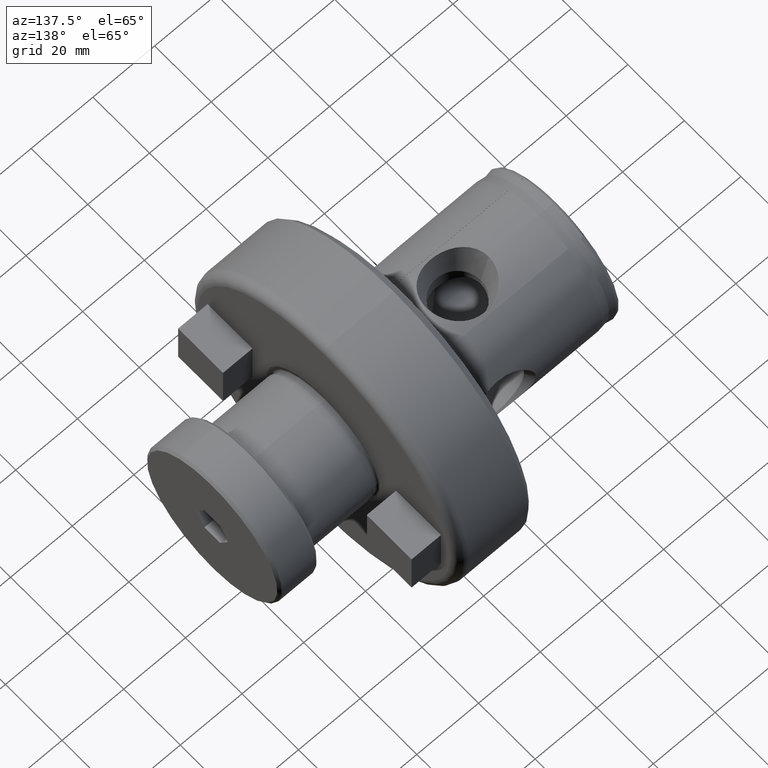
[diagram: clean part render]
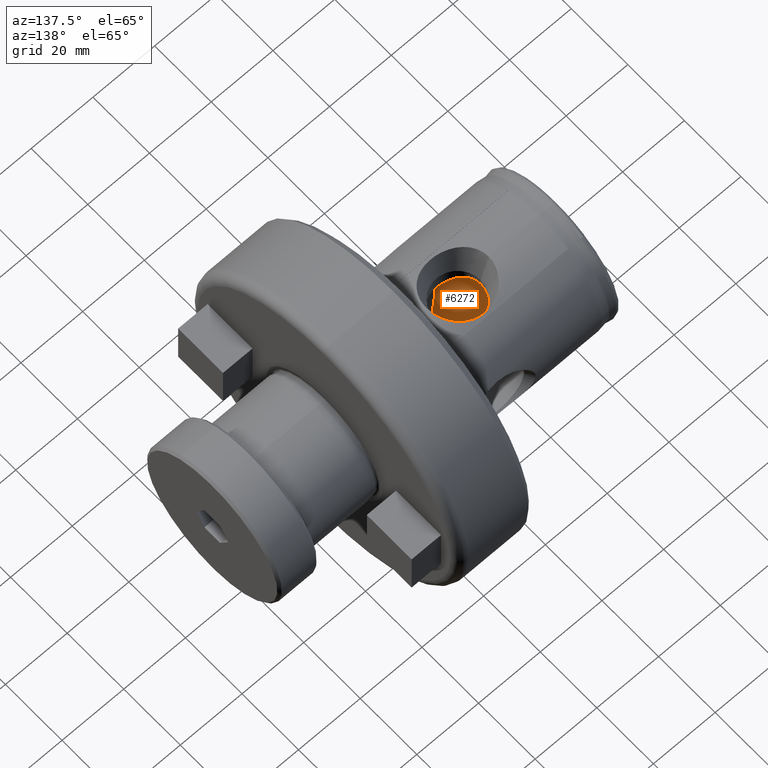
[diagram: same view with one face highlighted and labeled with its STEP entity id]
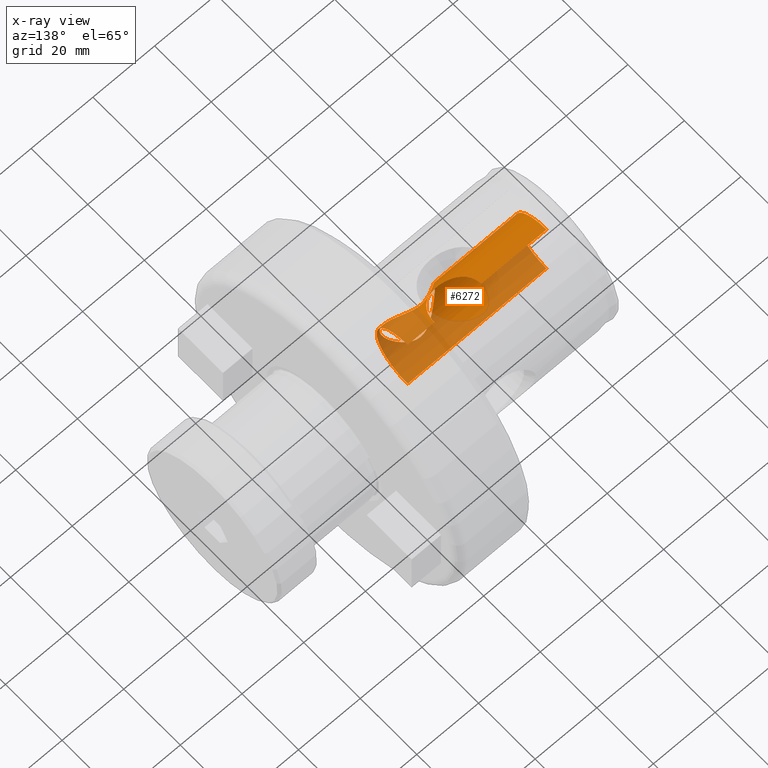
[diagram: x-ray of the same camera — body ghosted, the highlighted face saturated]
A machine part, auxiliary view. The second image highlights one B-rep face of the part: STEP entity #6272.
The next image is the same camera in x-ray: the body ghosted, the highlighted face saturated — about 54% of this face is hidden behind the body in this view.
In plain terms, the highlighted cylindrical surface (partial cylindrical patch) has radius 11 mm, axis along (-1, -0, -0).
Its self-contained STEP definition (entity closure, byte-faithful):
#192 = DIRECTION ( 'NONE',  ( 0.0000000000000000000, 0.0000000000000000000, 1.000000000000000000 ) ) ;
#193 = DIRECTION ( 'NONE',  ( -1.000000000000000000, -0.0000000000000000000, -0.0000000000000000000 ) ) ;
#194 = CARTESIAN_POINT ( 'NONE',  ( 0.0000000000000000000, 0.0000000000000000000, 0.0000000000000000000 ) ) ;
#670 = LINE ( 'NONE', #5202, #672 ) ;
#672 = VECTOR ( 'NONE', #5215, 1000.000000000000000 ) ;
#673 = VECTOR ( 'NONE', #5220, 1000.000000000000000 ) ;
#674 = LINE ( 'NONE', #5214, #673 ) ;
#675 = CIRCLE ( 'NONE', #3207, 11.00000000000000000 ) ;
#676 = LINE ( 'NONE', #5221, #677 ) ;
#677 = VECTOR ( 'NONE', #5222, 1000.000000000000000 ) ;
#940 = FACE_BOUND ( 'NONE', #6953, .T. ) ;
#944 = CYLINDRICAL_SURFACE ( 'NONE', #7207, 11.00000000000000000 ) ;
#950 = FACE_OUTER_BOUND ( 'NONE', #6955, .T. ) ;
#2258 = CIRCLE ( 'NONE', #3190, 11.00000000000000000 ) ;
#2929 = EDGE_CURVE ( 'NONE', #3975, #3951, #2258, .T. ) ;
#2953 = EDGE_CURVE ( 'NONE', #9272, #9273, #7035, .T. ) ;
#2954 = EDGE_CURVE ( 'NONE', #9273, #9272, #7036, .T. ) ;
#2971 = EDGE_CURVE ( 'NONE', #3951, #9287, #670, .T. ) ;
#2972 = EDGE_CURVE ( 'NONE', #3875, #3877, #675, .T. ) ;
#2973 = EDGE_CURVE ( 'NONE', #3975, #3875, #674, .T. ) ;
#2974 = EDGE_CURVE ( 'NONE', #9288, #3877, #676, .T. ) ;
#3190 = AXIS2_PLACEMENT_3D ( 'NONE', #4984, #4985, #4986 ) ;
#3207 = AXIS2_PLACEMENT_3D ( 'NONE', #5216, #5217, #5218 ) ;
#3875 = VERTEX_POINT ( 'NONE', #5791 ) ;
#3877 = VERTEX_POINT ( 'NONE', #5793 ) ;
#3951 = VERTEX_POINT ( 'NONE', #5816 ) ;
#3975 = VERTEX_POINT ( 'NONE', #5820 ) ;
#4984 = CARTESIAN_POINT ( 'NONE',  ( 48.00000000000000000, 0.0000000000000000000, 0.0000000000000000000 ) ) ;
#4985 = DIRECTION ( 'NONE',  ( -1.000000000000000000, -0.0000000000000000000, -0.0000000000000000000 ) ) ;
#4986 = DIRECTION ( 'NONE',  ( 0.0000000000000000000, 0.0000000000000000000, 1.000000000000000000 ) ) ;
#5043 = CARTESIAN_POINT ( 'NONE',  ( 37.99999999999999300, -6.324555320336753700, -9.000000000000003600 ) ) ;
#5045 = CARTESIAN_POINT ( 'NONE',  ( 37.99999999999982900, -6.324555320337297300, 9.000000000000078200 ) ) ;
#5046 = CARTESIAN_POINT ( 'NONE',  ( 38.31295146527097700, -6.324555320336757300, -9.000000000000005300 ) ) ;
#5047 = CARTESIAN_POINT ( 'NONE',  ( 38.62378268100995600, -6.347894227592907300, -8.983724380777522000 ) ) ;
#5048 = CARTESIAN_POINT ( 'NONE',  ( 39.24143426781726900, -6.437997773600920400, -8.919374952405208400 ) ) ;
#5049 = CARTESIAN_POINT ( 'NONE',  ( 39.54976340284996900, -6.505455086465420100, -8.870726595185534100 ) ) ;
#5050 = CARTESIAN_POINT ( 'NONE',  ( 40.43821651174812400, -6.754377607669276500, -8.684545351785478900 ) ) ;
#5051 = CARTESIAN_POINT ( 'NONE',  ( 40.99412497202110500, -6.982137574739820900, -8.506897211298191800 ) ) ;
#5052 = CARTESIAN_POINT ( 'NONE',  ( 42.05461547428918600, -7.498357647435788000, -8.055568128153833400 ) ) ;
#5053 = CARTESIAN_POINT ( 'NONE',  ( 42.54394238459282500, -7.779283033584960100, -7.788385423207050600 ) ) ;
#5054 = CARTESIAN_POINT ( 'NONE',  ( 43.23402882798424700, -8.207467075943773300, -7.326768196248649700 ) ) ;
#5055 = CARTESIAN_POINT ( 'NONE',  ( 43.45653668630526300, -8.351529607590668600, -7.162630017601375500 ) ) ;
#5056 = CARTESIAN_POINT ( 'NONE',  ( 43.88759775224712500, -8.639332235174997300, -6.812727360299546400 ) ) ;
#5057 = CARTESIAN_POINT ( 'NONE',  ( 44.09687597052867900, -8.783602170141929100, -6.626238705432832900 ) ) ;
#5058 = CARTESIAN_POINT ( 'NONE',  ( 44.69902397215959400, -9.208474581211641300, -6.036457715081474400 ) ) ;
#5059 = CARTESIAN_POINT ( 'NONE',  ( 45.06202882861030900, -9.477738077880649900, -5.608197967950855100 ) ) ;
#5060 = CARTESIAN_POINT ( 'NONE',  ( 45.54983857994444200, -9.848293230677796800, -4.907236627955193800 ) ) ;
#5061 = CARTESIAN_POINT ( 'NONE',  ( 45.70289006612479500, -9.966266519665991200, -4.663753832353022800 ) ) ;
#5062 = CARTESIAN_POINT ( 'NONE',  ( 45.98876279001349600, -10.18883133069318700, -4.155091366563165200 ) ) ;
#5063 = CARTESIAN_POINT ( 'NONE',  ( 46.12226849291566600, -10.29397154860356000, -3.888328396208876800 ) ) ;
#5064 = CARTESIAN_POINT ( 'NONE',  ( 46.48426076031908800, -10.58116722006071900, -3.062465036862893200 ) ) ;
#5065 = CARTESIAN_POINT ( 'NONE',  ( 46.67201523968023500, -10.73303995099937100, -2.485920569551101100 ) ) ;
#5066 = CARTESIAN_POINT ( 'NONE',  ( 46.86611209507313400, -10.89066197485386800, -1.577329599810565400 ) ) ;
#5067 = CARTESIAN_POINT ( 'NONE',  ( 46.91612351217000300, -10.93146341324059600, -1.265123403570824100 ) ) ;
#5068 = CARTESIAN_POINT ( 'NONE',  ( 46.98243211327050500, -10.98561425411707000, -0.6432021774063077000 ) ) ;
#5069 = CARTESIAN_POINT ( 'NONE',  ( 46.99928483042610600, -10.99941486172795500, -0.3318139073565993800 ) ) ;
#5070 = CARTESIAN_POINT ( 'NONE',  ( 47.00067072176239000, -11.00054877189566600, 0.2918124169082695900 ) ) ;
#5071 = CARTESIAN_POINT ( 'NONE',  ( 46.98520516997831500, -10.98788290588001700, 0.6040504403491803200 ) ) ;
#5072 = CARTESIAN_POINT ( 'NONE',  ( 46.92117575948941500, -10.93558575195799800, 1.229394952563908700 ) ) ;
#5073 = CARTESIAN_POINT ( 'NONE',  ( 46.87253691795822900, -10.89589586246527000, 1.540691347388883000 ) ) ;
#5074 = CARTESIAN_POINT ( 'NONE',  ( 46.74585106358330200, -10.79298596828219400, 2.146096540715378300 ) ) ;
#5075 = CARTESIAN_POINT ( 'NONE',  ( 46.66760810845059400, -10.72960462351119100, 2.442414731716943800 ) ) ;
#5076 = CARTESIAN_POINT ( 'NONE',  ( 46.48259625703186500, -10.58071000996649900, 3.022975485109889800 ) ) ;
#5077 = CARTESIAN_POINT ( 'NONE',  ( 46.37513096970883500, -10.49464205608619900, 3.308720680275716800 ) ) ;
#5078 = CARTESIAN_POINT ( 'NONE',  ( 46.01577456462833000, -10.20937874570882500, 4.136322440102849100 ) ) ;
#5079 = CARTESIAN_POINT ( 'NONE',  ( 45.72938141114562400, -9.984873728867773600, 4.646559155060552700 ) ) ;
#5080 = CARTESIAN_POINT ( 'NONE',  ( 45.23616714022042400, -9.609927495919183800, 5.359230109251155800 ) ) ;
#5081 = CARTESIAN_POINT ( 'NONE',  ( 45.06061911621536400, -9.478236986029864800, 5.588225433440646500 ) ) ;
#5082 = CARTESIAN_POINT ( 'NONE',  ( 44.69436173205068000, -9.208643388611749400, 6.022136398295425700 ) ) ;
#5083 = CARTESIAN_POINT ( 'NONE',  ( 44.50299915674345600, -9.070227025113871000, 6.228095582515769600 ) ) ;
#5084 = CARTESIAN_POINT ( 'NONE',  ( 44.10386877238173000, -8.788471667187465600, 6.619740072472756000 ) ) ;
#5085 = CARTESIAN_POINT ( 'NONE',  ( 43.89610422887614000, -8.645121770151419600, 6.805420925311390000 ) ) ;
#5086 = CARTESIAN_POINT ( 'NONE',  ( 43.46337127312004600, -8.355986537263470700, 7.157469761059690700 ) ) ;
#5087 = CARTESIAN_POINT ( 'NONE',  ( 43.23739431678275500, -8.209575931333878500, 7.324464543071716300 ) ) ;
#5088 = CARTESIAN_POINT ( 'NONE',  ( 42.54069967077212100, -7.777229871337427300, 7.790658944439934800 ) ) ;
#5089 = CARTESIAN_POINT ( 'NONE',  ( 42.05129833255504200, -7.496988139732030400, 8.056647767958624600 ) ) ;
#5090 = CARTESIAN_POINT ( 'NONE',  ( 41.26756004608847700, -7.115117841734852200, 8.390691223271490500 ) ) ;
#5091 = CARTESIAN_POINT ( 'NONE',  ( 40.99792248244986600, -6.994374932525727400, 8.491102994853577000 ) ) ;
#5092 = CARTESIAN_POINT ( 'NONE',  ( 40.43758875102924600, -6.773151438223583100, 8.668594485892473500 ) ) ;
#5093 = CARTESIAN_POINT ( 'NONE',  ( 40.14417004229314000, -6.672033518611987000, 8.746130474273464000 ) ) ;
#5094 = CARTESIAN_POINT ( 'NONE',  ( 39.54960080873358000, -6.505369226234754400, 8.870794822159666600 ) ) ;
#5095 = CARTESIAN_POINT ( 'NONE',  ( 39.24753997425402500, -6.439239462942335700, 8.918479843861579300 ) ) ;
#5096 = CARTESIAN_POINT ( 'NONE',  ( 38.63241241971881800, -6.348810466722627900, 8.983078160859575300 ) ) ;
#5097 = CARTESIAN_POINT ( 'NONE',  ( 38.31746747245787100, -6.324555320336754600, 9.000000000000003600 ) ) ;
#5098 = CARTESIAN_POINT ( 'NONE',  ( 37.99999999999982900, -6.324555320337297300, 9.000000000000078200 ) ) ;
#5099 = CARTESIAN_POINT ( 'NONE',  ( 37.36493546795291100, -6.324555320336754600, 9.000000000000005300 ) ) ;
#5100 = CARTESIAN_POINT ( 'NONE',  ( 36.75141791130541000, -6.421128397702461600, 8.933792976719393800 ) ) ;
#5101 = CARTESIAN_POINT ( 'NONE',  ( 35.85644050030533200, -6.671793649059012000, 8.746316722886337700 ) ) ;
#5102 = CARTESIAN_POINT ( 'NONE',  ( 35.56727145118488700, -6.771442408310744700, 8.669914765027600700 ) ) ;
#5103 = CARTESIAN_POINT ( 'NONE',  ( 35.00934583139060400, -6.991300054572819900, 8.493619833077232800 ) ) ;
#5104 = CARTESIAN_POINT ( 'NONE',  ( 34.73945332249547100, -7.111861497588426700, 8.393462625440385200 ) ) ;
#5105 = CARTESIAN_POINT ( 'NONE',  ( 33.95193514472841700, -7.495096154904529400, 8.058454495181845100 ) ) ;
#5106 = CARTESIAN_POINT ( 'NONE',  ( 33.45367242090777200, -7.780654904042037900, 7.787064382157709900 ) ) ;
#5107 = CARTESIAN_POINT ( 'NONE',  ( 32.53215203577520500, -8.352655723735775700, 7.170084015435709700 ) ) ;
#5108 = CARTESIAN_POINT ( 'NONE',  ( 32.10457456989636400, -8.641548153922768100, 6.823073606755328600 ) ) ;
#5109 = CARTESIAN_POINT ( 'NONE',  ( 31.30809089608875000, -9.203366826855461400, 6.043899981808402300 ) ) ;
#5110 = CARTESIAN_POINT ( 'NONE',  ( 30.93695623064566600, -9.478467829318058000, 5.607305554645750900 ) ) ;
#5111 = CARTESIAN_POINT ( 'NONE',  ( 30.28274930797435300, -9.975506169973165500, 4.666101652065225200 ) ) ;
#5112 = CARTESIAN_POINT ( 'NONE',  ( 29.99637436494793600, -10.19983137480277300, 4.159577662267057700 ) ) ;
#5113 = CARTESIAN_POINT ( 'NONE',  ( 29.63533214012701200, -10.48629117458024100, 3.335020090288996800 ) ) ;
#5114 = CARTESIAN_POINT ( 'NONE',  ( 29.52720750436195700, -10.57284959928780000, 3.050255294031573700 ) ) ;
#5115 = CARTESIAN_POINT ( 'NONE',  ( 29.34082425582788300, -10.72279163946958600, 2.472032658451161200 ) ) ;
#5116 = CARTESIAN_POINT ( 'NONE',  ( 29.26182400479599700, -10.78676577896199600, 2.176972083629176600 ) ) ;
#5117 = CARTESIAN_POINT ( 'NONE',  ( 29.13340449705962600, -10.89105651715152400, 1.574297101343248300 ) ) ;
#5118 = CARTESIAN_POINT ( 'NONE',  ( 29.08385259096189300, -10.93148274493101200, 1.265464211947524100 ) ) ;
#5119 = CARTESIAN_POINT ( 'NONE',  ( 29.01722801004076400, -10.98589199867828900, 0.6394463760321479300 ) ) ;
#5120 = CARTESIAN_POINT ( 'NONE',  ( 29.00054522381505600, -10.99955390799993400, 0.3270880132073262200 ) ) ;
#5121 = CARTESIAN_POINT ( 'NONE',  ( 28.99948100046182700, -11.00042463577868000, -0.2963622376991538200 ) ) ;
#5122 = CARTESIAN_POINT ( 'NONE',  ( 29.01510174577919100, -10.98763210947562300, -0.6074540486949785400 ) ) ;
#5123 = CARTESIAN_POINT ( 'NONE',  ( 29.07876096421264100, -10.93563755197361200, -1.228369295578585700 ) ) ;
#5124 = CARTESIAN_POINT ( 'NONE',  ( 29.12736447164398300, -10.89597579326361800, -1.540291302733667100 ) ) ;
#5125 = CARTESIAN_POINT ( 'NONE',  ( 29.31794934527165700, -10.74115974393061300, -2.450842812997112900 ) ) ;
#5126 = CARTESIAN_POINT ( 'NONE',  ( 29.50366094513340400, -10.59087095141755900, -3.028991403410703100 ) ) ;
#5127 = CARTESIAN_POINT ( 'NONE',  ( 29.98287972058271200, -10.21043523797946600, -4.133805593220777100 ) ) ;
#5128 = CARTESIAN_POINT ( 'NONE',  ( 30.27002699517530400, -9.985354041722065000, -4.645278640837753800 ) ) ;
#5129 = CARTESIAN_POINT ( 'NONE',  ( 30.92453213825540800, -9.487731981132133900, -5.591855760278635400 ) ) ;
#5130 = CARTESIAN_POINT ( 'NONE',  ( 31.29459835462680000, -9.213182384378720600, -6.029082159531553100 ) ) ;
#5131 = CARTESIAN_POINT ( 'NONE',  ( 32.09188219795208100, -8.650212389584899200, -6.812223348458252800 ) ) ;
#5132 = CARTESIAN_POINT ( 'NONE',  ( 32.52146801102601600, -8.359513932091447300, -7.162354338445943800 ) ) ;
#5133 = CARTESIAN_POINT ( 'NONE',  ( 33.45165341999433700, -7.781684717236289300, -7.786281256917032300 ) ) ;
#5134 = CARTESIAN_POINT ( 'NONE',  ( 33.94449689956797300, -7.499170577374030700, -8.054674320068283300 ) ) ;
#5135 = CARTESIAN_POINT ( 'NONE',  ( 34.73091701534254100, -7.115793493933870700, -8.390132143739949200 ) ) ;
#5136 = CARTESIAN_POINT ( 'NONE',  ( 35.00138358257240200, -6.994647420814206200, -8.490884733572787700 ) ) ;
#5137 = CARTESIAN_POINT ( 'NONE',  ( 35.56319123012077200, -6.772844978559367000, -8.668840002948803300 ) ) ;
#5138 = CARTESIAN_POINT ( 'NONE',  ( 35.85479622440377800, -6.672417728769111100, -8.745833673684750000 ) ) ;
#5139 = CARTESIAN_POINT ( 'NONE',  ( 36.44688742820334000, -6.506259890984443600, -8.870137948528055800 ) ) ;
#5140 = CARTESIAN_POINT ( 'NONE',  ( 36.74918223585172000, -6.439773594340239900, -8.918097037106676300 ) ) ;
#5141 = CARTESIAN_POINT ( 'NONE',  ( 37.36866356563100300, -6.348600204817960200, -8.983229605715195000 ) ) ;
#5142 = CARTESIAN_POINT ( 'NONE',  ( 37.68698466285846400, -6.324555320336751900, -9.000000000000005300 ) ) ;
#5143 = CARTESIAN_POINT ( 'NONE',  ( 37.99999999999999300, -6.324555320336753700, -9.000000000000003600 ) ) ;
#5202 = CARTESIAN_POINT ( 'NONE',  ( 0.0000000000000000000, 0.0000000000000000000, 11.00000000000000000 ) ) ;
#5214 = CARTESIAN_POINT ( 'NONE',  ( 0.0000000000000000000, 1.347111479062088400E-015, -11.00000000000000000 ) ) ;
#5215 = DIRECTION ( 'NONE',  ( -1.000000000000000000, -0.0000000000000000000, -0.0000000000000000000 ) ) ;
#5216 = CARTESIAN_POINT ( 'NONE',  ( 3.000000000000000900, 0.0000000000000000000, 0.0000000000000000000 ) ) ;
#5217 = DIRECTION ( 'NONE',  ( -1.000000000000000000, -0.0000000000000000000, -0.0000000000000000000 ) ) ;
#5218 = DIRECTION ( 'NONE',  ( 0.0000000000000000000, 0.0000000000000000000, 1.000000000000000000 ) ) ;
#5220 = DIRECTION ( 'NONE',  ( -1.000000000000000000, -0.0000000000000000000, -0.0000000000000000000 ) ) ;
#5221 = CARTESIAN_POINT ( 'NONE',  ( 0.0000000000000000000, 0.0000000000000000000, 11.00000000000000000 ) ) ;
#5222 = DIRECTION ( 'NONE',  ( -1.000000000000000000, -0.0000000000000000000, -0.0000000000000000000 ) ) ;
#5791 = CARTESIAN_POINT ( 'NONE',  ( 3.000000000000000900, 1.347111479062088400E-015, -11.00000000000000000 ) ) ;
#5793 = CARTESIAN_POINT ( 'NONE',  ( 3.000000000000000900, 0.0000000000000000000, 11.00000000000000000 ) ) ;
#5816 = CARTESIAN_POINT ( 'NONE',  ( 48.00000000000000000, 0.0000000000000000000, 11.00000000000000000 ) ) ;
#5820 = CARTESIAN_POINT ( 'NONE',  ( 48.00000000000000000, 1.347111479062088400E-015, -11.00000000000000000 ) ) ;
#6272 = ADVANCED_FACE ( 'NONE', ( #940, #950 ), #944, .F. ) ;
#6442 = EDGE_CURVE ( 'NONE', #9287, #9288, #7372, .T. ) ;
#6643 = ORIENTED_EDGE ( 'NONE', *, *, #2954, .T. ) ;
#6644 = ORIENTED_EDGE ( 'NONE', *, *, #2953, .T. ) ;
#6645 = ORIENTED_EDGE ( 'NONE', *, *, #2929, .F. ) ;
#6646 = ORIENTED_EDGE ( 'NONE', *, *, #2973, .T. ) ;
#6647 = ORIENTED_EDGE ( 'NONE', *, *, #2972, .T. ) ;
#6648 = ORIENTED_EDGE ( 'NONE', *, *, #2974, .F. ) ;
#6649 = ORIENTED_EDGE ( 'NONE', *, *, #6442, .F. ) ;
#6650 = ORIENTED_EDGE ( 'NONE', *, *, #2971, .F. ) ;
#6953 = EDGE_LOOP ( 'NONE', ( #6643, #6644 ) ) ;
#6955 = EDGE_LOOP ( 'NONE', ( #6645, #6646, #6647, #6648, #6649, #6650 ) ) ;
#7035 = B_SPLINE_CURVE_WITH_KNOTS ( 'NONE', 3,
 ( #5043, #5046, #5047, #5048, #5049, #5050, #5051, #5052, #5053, #5054, #5055, #5056, #5057, #5058, #5059, #5060, #5061, #5062, #5063, #5064, #5065, #5066, #5067, #5068, #5069, #5070, #5071, #5072, #5073, #5074, #5075, #5076, #5077, #5078, #5079, #5080, #5081, #5082, #5083, #5084, #5085, #5086, #5087, #5088, #5089, #5090, #5091, #5092, #5093, #5094, #5095, #5096, #5097, #5098 ),
 .UNSPECIFIED., .F., .F.,
 ( 4, 2, 2, 2, 2, 2, 2, 2, 2, 2, 2, 2, 2, 2, 2, 2, 2, 2, 2, 2, 2, 2, 2, 2, 2, 2, 4 ),
 ( 0.02997932417630954200, 0.03091598688851945200, 0.03185264960072935900, 0.03372597502514915900, 0.03559930044956895900, 0.03653596316177885900, 0.03747262587398875900, 0.03934595129840856600, 0.04028261401061845900, 0.04121927672282835200, 0.04309260214724815200, 0.04402926485945805200, 0.04496592757166795200, 0.04590259028387784500, 0.04683925299608775200, 0.04777591570829764500, 0.04871257842050754500, 0.05058590384492733100, 0.05152256655713723100, 0.05245922926934712400, 0.05339589198155703100, 0.05433255469376692400, 0.05620588011818671000, 0.05714254283039660300, 0.05807920554260649600, 0.05901586825481638900, 0.05995253096702627500 ),
 .UNSPECIFIED. ) ;
#7036 = B_SPLINE_CURVE_WITH_KNOTS ( 'NONE', 3,
 ( #5045, #5099, #5100, #5101, #5102, #5103, #5104, #5105, #5106, #5107, #5108, #5109, #5110, #5111, #5112, #5113, #5114, #5115, #5116, #5117, #5118, #5119, #5120, #5121, #5122, #5123, #5124, #5125, #5126, #5127, #5128, #5129, #5130, #5131, #5132, #5133, #5134, #5135, #5136, #5137, #5138, #5139, #5140, #5141, #5142, #5143 ),
 .UNSPECIFIED., .F., .F.,
 ( 4, 2, 2, 2, 2, 2, 2, 2, 2, 2, 2, 2, 2, 2, 2, 2, 2, 2, 2, 2, 2, 2, 4 ),
 ( 2.259156830382659900E-016, 0.001873707761019562300, 0.002810561641529231300, 0.003747415522038900400, 0.005621123283058237000, 0.007494831044077574500, 0.009368538805096896300, 0.01124224656611622100, 0.01217910044662588400, 0.01311595432713554700, 0.01405280820764520800, 0.01498966208815487000, 0.01592651596866453300, 0.01686336984917419200, 0.01873707761019351500, 0.02061078537121284500, 0.02248449313223217100, 0.02435820089325150400, 0.02623190865427084100, 0.02716876253478051800, 0.02810561641529019100, 0.02904247029579986500, 0.02997932417630954200 ),
 .UNSPECIFIED. ) ;
#7207 = AXIS2_PLACEMENT_3D ( 'NONE', #194, #193, #192 ) ;
#7372 = B_SPLINE_CURVE_WITH_KNOTS ( 'NONE', 3,
 ( #8035, #8049, #8050, #8051, #8052, #8053, #8054, #8055, #8056, #8057, #8058, #8059, #8060, #8061, #8062, #8063, #8064, #8065, #8066, #8067, #8068, #8069, #8070, #8071, #8072, #8073, #8074, #8075, #8076, #8077, #8078, #8079, #8080, #8081, #8082, #8083, #8084, #8085, #8086, #8087, #8088, #8089 ),
 .UNSPECIFIED., .F., .F.,
 ( 4, 2, 2, 2, 2, 2, 2, 2, 2, 2, 2, 2, 2, 2, 2, 2, 2, 2, 2, 2, 4 ),
 ( 1.098554573353814300E-018, 0.001518570937570078300, 0.003037141875140155400, 0.004555712812710231500, 0.006074283750280309000, 0.007592854687850385600, 0.009111425625420464800, 0.009870711094205501800, 0.01062999656299054200, 0.01138928203177557900, 0.01214856750056061800, 0.01366713843813069400, 0.01518570937570077100, 0.01594499484448580800, 0.01670428031327084500, 0.01822285125084092300, 0.01974142218841099700, 0.02125999312598107100, 0.02277856406355114500, 0.02353784953233618200, 0.02429713500112121500 ),
 .UNSPECIFIED. ) ;
#8035 = CARTESIAN_POINT ( 'NONE',  ( 39.29999999999999000, 1.134577180984299700E-015, 11.00000000000000000 ) ) ;
#8049 = CARTESIAN_POINT ( 'NONE',  ( 39.29999999999999000, -0.5144225921681085900, 11.00000000000000400 ) ) ;
#8050 = CARTESIAN_POINT ( 'NONE',  ( 39.24765808049651400, -1.017354699806585200, 10.96412460493956300 ) ) ;
#8051 = CARTESIAN_POINT ( 'NONE',  ( 39.04531460084684400, -2.002008442529425100, 10.82769602149508800 ) ) ;
#8052 = CARTESIAN_POINT ( 'NONE',  ( 38.89270136897879100, -2.487139238067590100, 10.72543512827883900 ) ) ;
#8053 = CARTESIAN_POINT ( 'NONE',  ( 38.50681112401623100, -3.392780400471150600, 10.47424753548587600 ) ) ;
#8054 = CARTESIAN_POINT ( 'NONE',  ( 38.27221512816392100, -3.820383217107971700, 10.32438276632933800 ) ) ;
#8055 = CARTESIAN_POINT ( 'NONE',  ( 37.72668023767795400, -4.621618542362824700, 9.991438809307023700 ) ) ;
#8056 = CARTESIAN_POINT ( 'NONE',  ( 37.42203284041480100, -4.986695666067337400, 9.812154169437775400 ) ) ;
#8057 = CARTESIAN_POINT ( 'NONE',  ( 36.74994743673382700, -5.654414850207721200, 9.443150735455846600 ) ) ;
#8058 = CARTESIAN_POINT ( 'NONE',  ( 36.37906920700884000, -5.958748970213894000, 9.251820843372735600 ) ) ;
#8059 = CARTESIAN_POINT ( 'NONE',  ( 35.59264893899777600, -6.487709774498305200, 8.888897574489796200 ) ) ;
#8060 = CARTESIAN_POINT ( 'NONE',  ( 35.17555109442236700, -6.714943674932939600, 8.715999250033910100 ) ) ;
#8061 = CARTESIAN_POINT ( 'NONE',  ( 34.50642773966148300, -6.998853643785910400, 8.487097592457217800 ) ) ;
#8062 = CARTESIAN_POINT ( 'NONE',  ( 34.27470740219720100, -7.084311427785121600, 8.415583788599478900 ) ) ;
#8063 = CARTESIAN_POINT ( 'NONE',  ( 33.80075631962449000, -7.232469791282863300, 8.288600583148285800 ) ) ;
#8064 = CARTESIAN_POINT ( 'NONE',  ( 33.56004121112228900, -7.294841025362869900, 8.233461912851440800 ) ) ;
#8065 = CARTESIAN_POINT ( 'NONE',  ( 33.07054585344903300, -7.395820703914435700, 8.142876443324132300 ) ) ;
#8066 = CARTESIAN_POINT ( 'NONE',  ( 32.82176565658467400, -7.434432547344466800, 8.107433174029880600 ) ) ;
#8067 = CARTESIAN_POINT ( 'NONE',  ( 32.31535884089294100, -7.486601206362213800, 8.059284233061321200 ) ) ;
#8068 = CARTESIAN_POINT ( 'NONE',  ( 32.05701948733441500, -7.499919242694961200, 8.046813739930154700 ) ) ;
#8069 = CARTESIAN_POINT ( 'NONE',  ( 31.29306339161402300, -7.500160393641009700, 8.046588974090697700 ) ) ;
#8070 = CARTESIAN_POINT ( 'NONE',  ( 30.79042677998896200, -7.448992107332275100, 8.095134576916898100 ) ) ;
#8071 = CARTESIAN_POINT ( 'NONE',  ( 29.79771076465353000, -7.245519948194032400, 8.277748964169935800 ) ) ;
#8072 = CARTESIAN_POINT ( 'NONE',  ( 29.32763062584160400, -7.097561492304285100, 8.407392606135751100 ) ) ;
#8073 = CARTESIAN_POINT ( 'NONE',  ( 28.65367548959487100, -6.812498766242329800, 8.637405163162913600 ) ) ;
#8074 = CARTESIAN_POINT ( 'NONE',  ( 28.43369233755314000, -6.706390959913502300, 8.720367347221222000 ) ) ;
#8075 = CARTESIAN_POINT ( 'NONE',  ( 28.01142510559780200, -6.477222186629341600, 8.891910881398226600 ) ) ;
#8076 = CARTESIAN_POINT ( 'NONE',  ( 27.80809243068216900, -6.353791353007475000, 8.980813362756116200 ) ) ;
#8077 = CARTESIAN_POINT ( 'NONE',  ( 27.21921698330008600, -5.957381081652540500, 9.252691689709209300 ) ) ;
#8078 = CARTESIAN_POINT ( 'NONE',  ( 26.85450986344392300, -5.658624176594761600, 9.440746065657959800 ) ) ;
#8079 = CARTESIAN_POINT ( 'NONE',  ( 26.17696488825066600, -4.985917808663759700, 9.812662098198865500 ) ) ;
#8080 = CARTESIAN_POINT ( 'NONE',  ( 25.87150822293604700, -4.618626012259727400, 9.992571845321398500 ) ) ;
#8081 = CARTESIAN_POINT ( 'NONE',  ( 25.33288452884639200, -3.828203034662965600, 10.32124313493434700 ) ) ;
#8082 = CARTESIAN_POINT ( 'NONE',  ( 25.09749627190369400, -3.402081827431210600, 10.47146360326646400 ) ) ;
#8083 = CARTESIAN_POINT ( 'NONE',  ( 24.70671599587393200, -2.486571740869732800, 10.72579469002553800 ) ) ;
#8084 = CARTESIAN_POINT ( 'NONE',  ( 24.55713401439667700, -2.011317569697820900, 10.82605310265868700 ) ) ;
#8085 = CARTESIAN_POINT ( 'NONE',  ( 24.40404647078589300, -1.270235374488372500, 10.92925926723026800 ) ) ;
#8086 = CARTESIAN_POINT ( 'NONE',  ( 24.36485270200155600, -1.016893453839887500, 10.95586836149745700 ) ) ;
#8087 = CARTESIAN_POINT ( 'NONE',  ( 24.31283132244899600, -0.5077330334882470500, 10.99123882997854200 ) ) ;
#8088 = CARTESIAN_POINT ( 'NONE',  ( 24.29999999999999000, -0.2536324307302254600, 10.99999999999999500 ) ) ;
#8089 = CARTESIAN_POINT ( 'NONE',  ( 24.29999999999999000, 2.258330804627538900E-020, 11.00000000000000000 ) ) ;
#8843 = CARTESIAN_POINT ( 'NONE',  ( 37.99999999999999300, -6.324555320336753700, -9.000000000000003600 ) ) ;
#8844 = CARTESIAN_POINT ( 'NONE',  ( 37.99999999999982900, -6.324555320337297300, 9.000000000000078200 ) ) ;
#8858 = CARTESIAN_POINT ( 'NONE',  ( 39.29999999999999000, 1.134577180984299700E-015, 11.00000000000000000 ) ) ;
#8859 = CARTESIAN_POINT ( 'NONE',  ( 24.29999999999999000, 2.258330804627538900E-020, 11.00000000000000000 ) ) ;
#9272 = VERTEX_POINT ( 'NONE', #8843 ) ;
#9273 = VERTEX_POINT ( 'NONE', #8844 ) ;
#9287 = VERTEX_POINT ( 'NONE', #8858 ) ;
#9288 = VERTEX_POINT ( 'NONE', #8859 ) ;